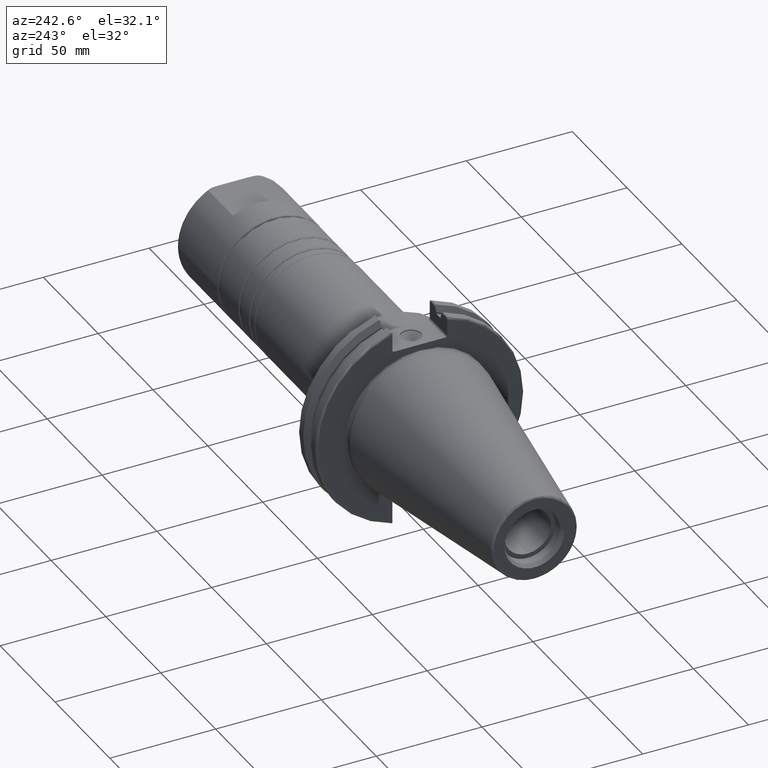
[diagram: clean part render]
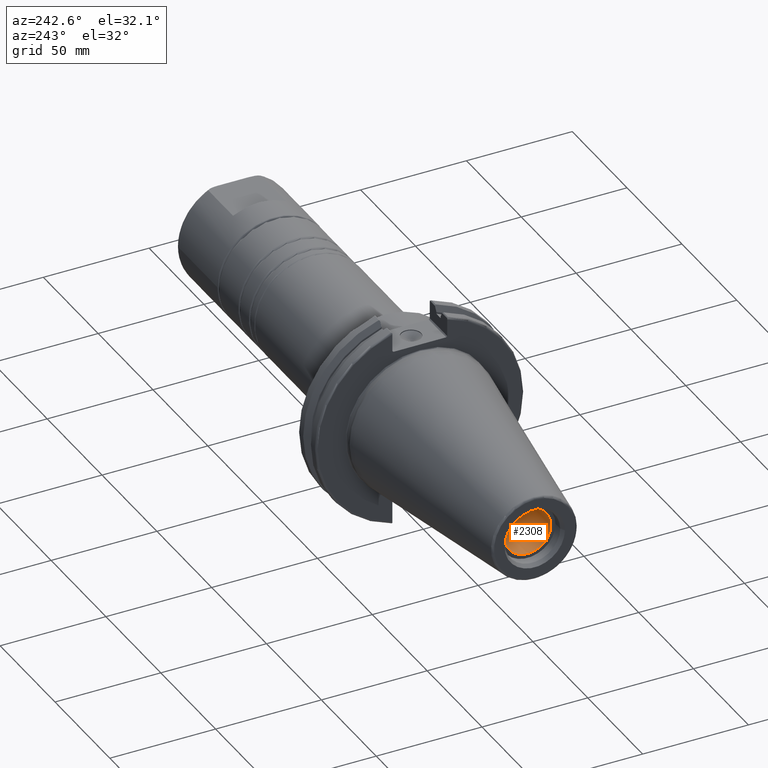
[diagram: same view with one face highlighted and labeled with its STEP entity id]
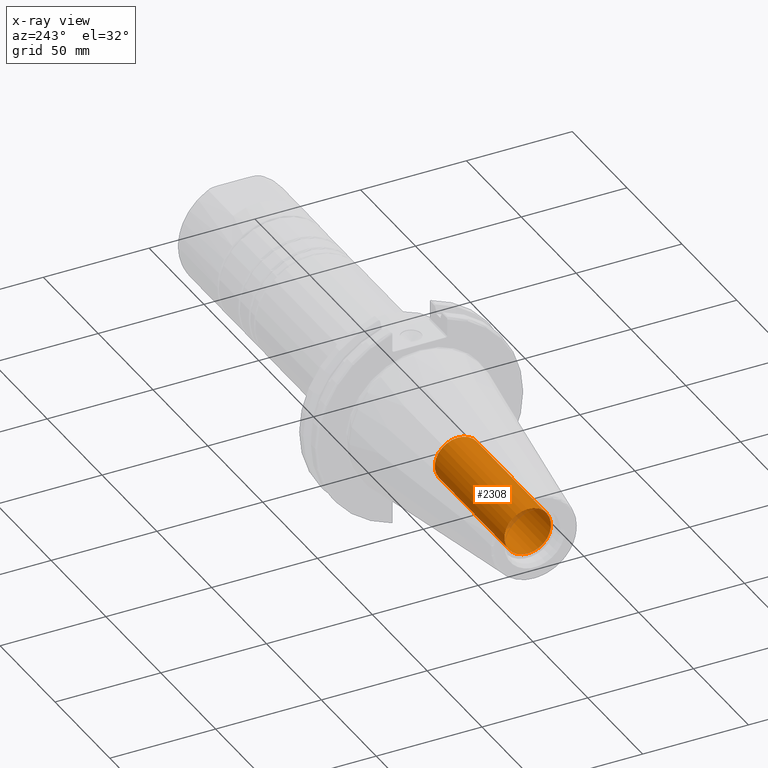
[diagram: x-ray of the same camera — body ghosted, the highlighted face saturated]
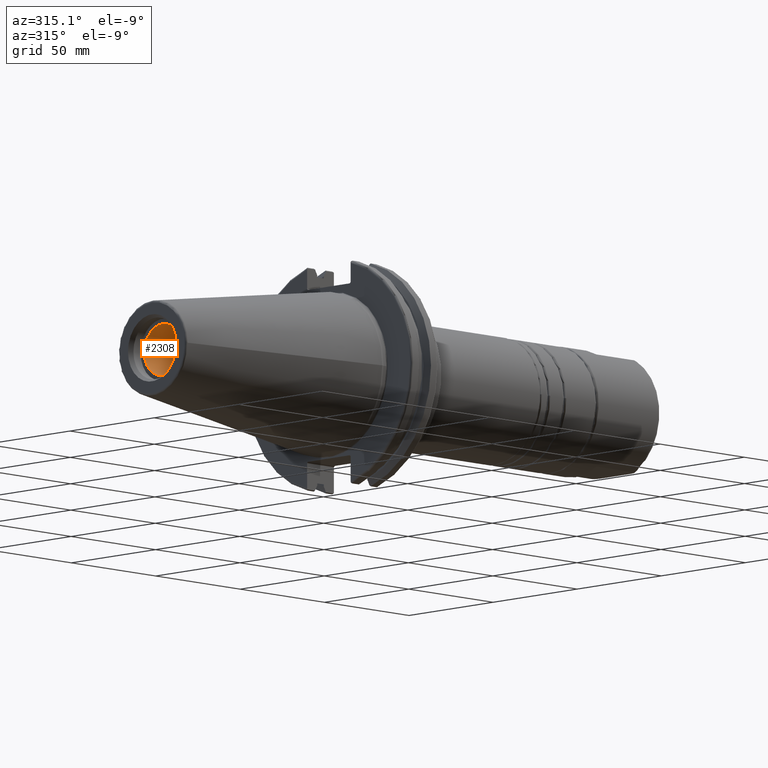
[diagram: same view with one face highlighted and labeled with its STEP entity id]
A machine part, auxiliary view. The second image highlights one B-rep face of the part: STEP entity #2308.
The next image is the same camera in x-ray: the body ghosted, the highlighted face saturated — about 1% of this face is hidden behind the body in this view.
A second angle (auxiliary view) of the same face is appended — the face is thin or edge-on in the first view.
In plain terms, the highlighted cylindrical surface (bore or boss wall) has radius 10.9855 mm, axis along (-1, 0, 0).
Its self-contained STEP definition (entity closure, byte-faithful):
#587=CIRCLE('',#2632,10.9855);
#588=CIRCLE('',#2634,10.9855);
#715=CYLINDRICAL_SURFACE('',#2633,10.9855);
#752=FACE_OUTER_BOUND('',#869,.T.);
#869=EDGE_LOOP('',(#1751,#1752,#1753,#1754));
#995=LINE('',#3784,#1127);
#1127=VECTOR('',#2998,10.9855);
#1262=VERTEX_POINT('',#3777);
#1264=VERTEX_POINT('',#3782);
#1451=EDGE_CURVE('',#1262,#1262,#587,.T.);
#1453=EDGE_CURVE('',#1264,#1264,#588,.T.);
#1454=EDGE_CURVE('',#1264,#1262,#995,.T.);
#1751=ORIENTED_EDGE('',*,*,#1453,.F.);
#1752=ORIENTED_EDGE('',*,*,#1454,.T.);
#1753=ORIENTED_EDGE('',*,*,#1451,.F.);
#1754=ORIENTED_EDGE('',*,*,#1454,.F.);
#2308=ADVANCED_FACE('',(#752),#715,.F.);
#2632=AXIS2_PLACEMENT_3D('',#3778,#2991,#2992);
#2633=AXIS2_PLACEMENT_3D('',#3781,#2994,#2995);
#2634=AXIS2_PLACEMENT_3D('',#3783,#2996,#2997);
#2991=DIRECTION('center_axis',(-1.,0.,0.));
#2992=DIRECTION('ref_axis',(0.,0.,1.));
#2994=DIRECTION('center_axis',(-1.,0.,0.));
#2995=DIRECTION('ref_axis',(0.,0.,1.));
#2996=DIRECTION('center_axis',(1.,0.,0.));
#2997=DIRECTION('ref_axis',(0.,0.,1.));
#2998=DIRECTION('',(1.,0.,0.));
#3777=CARTESIAN_POINT('',(-31.6,-1.34533574120333E-15,-10.9855));
#3778=CARTESIAN_POINT('Origin',(-31.6,0.,0.));
#3781=CARTESIAN_POINT('Origin',(-66.6,0.,0.));
#3782=CARTESIAN_POINT('',(-95.25,1.34533574120333E-15,-10.9855));
#3783=CARTESIAN_POINT('Origin',(-95.25,0.,0.));
#3784=CARTESIAN_POINT('',(-66.6,-1.34533574120333E-15,-10.9855));